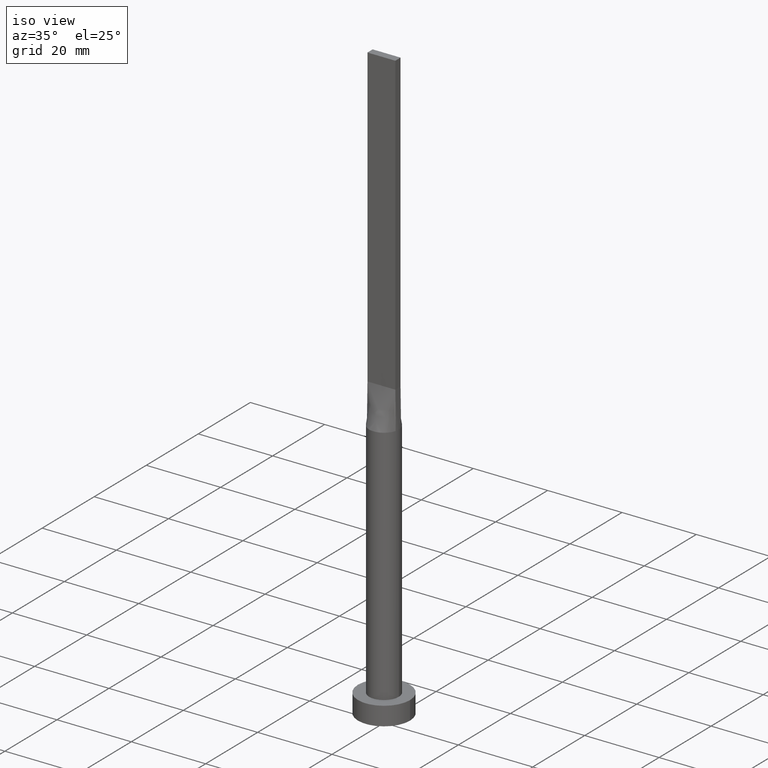
[diagram: clean part render]
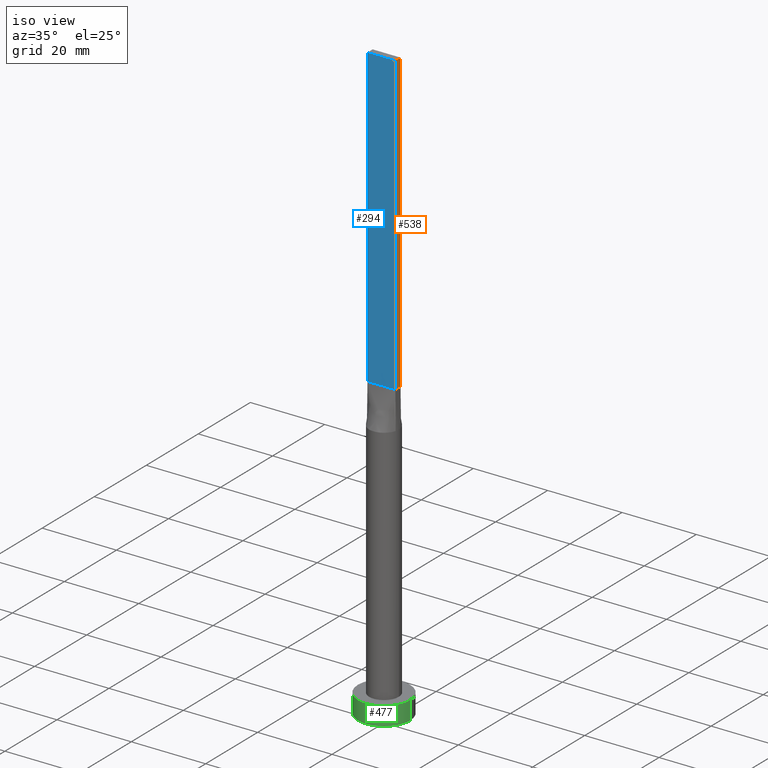
[diagram: same view with three faces highlighted in distinct colors, each labeled with its STEP entity id]
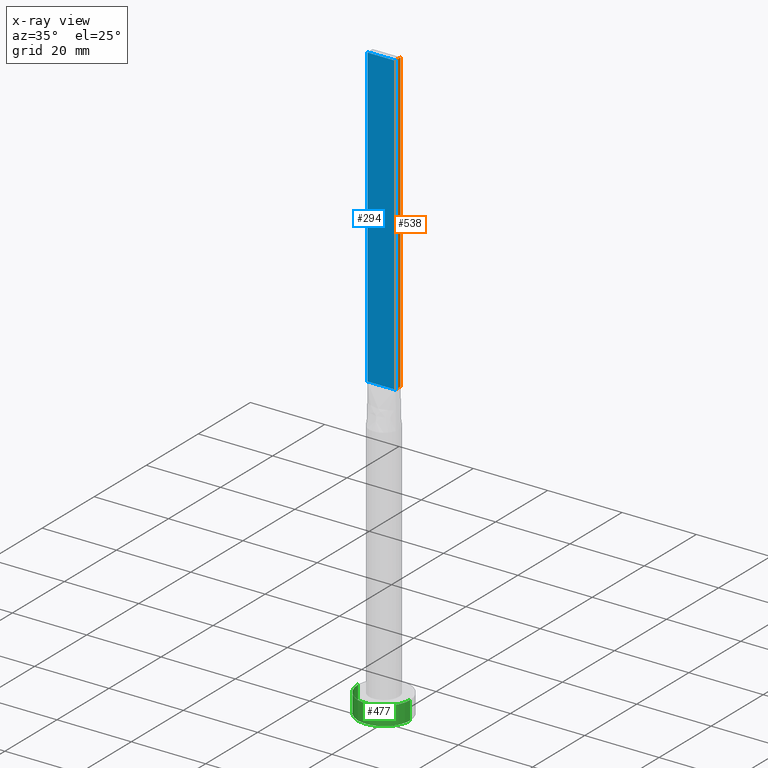
[diagram: x-ray of the same camera — body ghosted, the three highlighted faces saturated]
A machine part, iso view with three faces highlighted in distinct colors.
The next image is the same camera in x-ray (body ghosted, the three faces saturated) — at least one of them is partly hidden behind the body in this view.
Their STEP definitions:

[orange] entity #538 — the highlighted planar face has unit normal (-1, 0, 0).
#1 = CARTESIAN_POINT ( 'NONE',  ( 3.750000000000000000, -0.9999999999999997780, 160.0000000000000000 ) ) ;
#2 = VECTOR ( 'NONE', #314, 1000.000000000000000 ) ;
#7 = LINE ( 'NONE', #278, #491 ) ;
#15 = ORIENTED_EDGE ( 'NONE', *, *, #418, .T. ) ;
#25 = ORIENTED_EDGE ( 'NONE', *, *, #394, .T. ) ;
#60 = EDGE_LOOP ( 'NONE', ( #25, #419, #558, #15 ) ) ;
#81 = DIRECTION ( 'NONE',  ( -0.000000000000000000, 1.000000000000000000, -0.000000000000000000 ) ) ;
#89 = VERTEX_POINT ( 'NONE', #532 ) ;
#95 = CARTESIAN_POINT ( 'NONE',  ( 3.750000000000000000, -0.9999999999999997780, 160.0000000000000000 ) ) ;
#99 = DIRECTION ( 'NONE',  ( -1.000000000000000000, 0.000000000000000000, 0.000000000000000000 ) ) ;
#115 = VERTEX_POINT ( 'NONE', #1 ) ;
#126 = VECTOR ( 'NONE', #318, 1000.000000000000000 ) ;
#145 = FACE_OUTER_BOUND ( 'NONE', #60, .T. ) ;
#181 = CARTESIAN_POINT ( 'NONE',  ( 3.750000000000000000, 1.000000000000000000, 80.00000000000000000 ) ) ;
#197 = VERTEX_POINT ( 'NONE', #257 ) ;
#227 = CARTESIAN_POINT ( 'NONE',  ( 3.750000000000000000, -0.9999999999999997780, 160.0000000000000000 ) ) ;
#257 = CARTESIAN_POINT ( 'NONE',  ( 3.750000000000000000, 1.000000000000000000, 160.0000000000000000 ) ) ;
#260 = LINE ( 'NONE', #227, #126 ) ;
#278 = CARTESIAN_POINT ( 'NONE',  ( 3.750000000000000000, 1.000000000000000000, 160.0000000000000000 ) ) ;
#311 = LINE ( 'NONE', #571, #2 ) ;
#314 = DIRECTION ( 'NONE',  ( 0.000000000000000000, 1.000000000000000000, 0.000000000000000000 ) ) ;
#317 = EDGE_CURVE ( 'NONE', #115, #197, #311, .T. ) ;
#318 = DIRECTION ( 'NONE',  ( -0.000000000000000000, -0.000000000000000000, -1.000000000000000000 ) ) ;
#324 = CARTESIAN_POINT ( 'NONE',  ( 3.750000000000000000, -0.9999999999999997780, 80.00000000000000000 ) ) ;
#333 = PLANE ( 'NONE',  #473 ) ;
#364 = VECTOR ( 'NONE', #81, 1000.000000000000000 ) ;
#394 = EDGE_CURVE ( 'NONE', #547, #89, #486, .T. ) ;
#418 = EDGE_CURVE ( 'NONE', #115, #547, #260, .T. ) ;
#419 = ORIENTED_EDGE ( 'NONE', *, *, #577, .F. ) ;
#461 = DIRECTION ( 'NONE',  ( 0.000000000000000000, 0.000000000000000000, 1.000000000000000000 ) ) ;
#473 = AXIS2_PLACEMENT_3D ( 'NONE', #95, #99, #461 ) ;
#486 = LINE ( 'NONE', #181, #364 ) ;
#491 = VECTOR ( 'NONE', #553, 1000.000000000000000 ) ;
#532 = CARTESIAN_POINT ( 'NONE',  ( 3.750000000000000000, 1.000000000000000000, 80.00000000000000000 ) ) ;
#538 = ADVANCED_FACE ( 'NONE', ( #145 ), #333, .F. ) ;
#547 = VERTEX_POINT ( 'NONE', #324 ) ;
#553 = DIRECTION ( 'NONE',  ( -0.000000000000000000, -0.000000000000000000, -1.000000000000000000 ) ) ;
#558 = ORIENTED_EDGE ( 'NONE', *, *, #317, .F. ) ;
#571 = CARTESIAN_POINT ( 'NONE',  ( 3.750000000000000000, -0.9999999999999997780, 160.0000000000000000 ) ) ;
#577 = EDGE_CURVE ( 'NONE', #197, #89, #7, .T. ) ;

[blue] entity #294 — the highlighted planar face has unit normal (0, 1, -0).
#1 = CARTESIAN_POINT ( 'NONE',  ( 3.750000000000000000, -0.9999999999999997780, 160.0000000000000000 ) ) ;
#10 = LINE ( 'NONE', #549, #86 ) ;
#11 = ORIENTED_EDGE ( 'NONE', *, *, #418, .F. ) ;
#20 = ORIENTED_EDGE ( 'NONE', *, *, #457, .T. ) ;
#36 = CARTESIAN_POINT ( 'NONE',  ( -3.750000000000000000, -0.9999999999999991118, 160.0000000000000000 ) ) ;
#71 = EDGE_LOOP ( 'NONE', ( #20, #11, #468, #282 ) ) ;
#79 = CARTESIAN_POINT ( 'NONE',  ( -3.750000000000000000, -0.9999999999999991118, 80.00000000000000000 ) ) ;
#84 = DIRECTION ( 'NONE',  ( 1.000000000000000000, -8.673617379884035472E-17, 0.000000000000000000 ) ) ;
#86 = VECTOR ( 'NONE', #152, 1000.000000000000000 ) ;
#115 = VERTEX_POINT ( 'NONE', #1 ) ;
#126 = VECTOR ( 'NONE', #318, 1000.000000000000000 ) ;
#136 = AXIS2_PLACEMENT_3D ( 'NONE', #36, #541, #439 ) ;
#144 = VERTEX_POINT ( 'NONE', #500 ) ;
#146 = CARTESIAN_POINT ( 'NONE',  ( -3.750000000000000000, -0.9999999999999991118, 160.0000000000000000 ) ) ;
#152 = DIRECTION ( 'NONE',  ( 1.000000000000000000, -8.673617379884035472E-17, 0.000000000000000000 ) ) ;
#182 = EDGE_CURVE ( 'NONE', #144, #456, #546, .T. ) ;
#196 = VECTOR ( 'NONE', #329, 1000.000000000000000 ) ;
#227 = CARTESIAN_POINT ( 'NONE',  ( 3.750000000000000000, -0.9999999999999997780, 160.0000000000000000 ) ) ;
#260 = LINE ( 'NONE', #227, #126 ) ;
#279 = EDGE_CURVE ( 'NONE', #144, #115, #10, .T. ) ;
#280 = VECTOR ( 'NONE', #84, 1000.000000000000000 ) ;
#282 = ORIENTED_EDGE ( 'NONE', *, *, #182, .T. ) ;
#294 = ADVANCED_FACE ( 'NONE', ( #507 ), #409, .F. ) ;
#309 = CARTESIAN_POINT ( 'NONE',  ( -3.750000000000000000, -0.9999999999999991118, 80.00000000000000000 ) ) ;
#318 = DIRECTION ( 'NONE',  ( -0.000000000000000000, -0.000000000000000000, -1.000000000000000000 ) ) ;
#324 = CARTESIAN_POINT ( 'NONE',  ( 3.750000000000000000, -0.9999999999999997780, 80.00000000000000000 ) ) ;
#329 = DIRECTION ( 'NONE',  ( -0.000000000000000000, -0.000000000000000000, -1.000000000000000000 ) ) ;
#409 = PLANE ( 'NONE',  #136 ) ;
#418 = EDGE_CURVE ( 'NONE', #115, #547, #260, .T. ) ;
#439 = DIRECTION ( 'NONE',  ( -1.000000000000000000, 8.673617379884035472E-17, 0.000000000000000000 ) ) ;
#456 = VERTEX_POINT ( 'NONE', #309 ) ;
#457 = EDGE_CURVE ( 'NONE', #456, #547, #484, .T. ) ;
#468 = ORIENTED_EDGE ( 'NONE', *, *, #279, .F. ) ;
#484 = LINE ( 'NONE', #79, #280 ) ;
#500 = CARTESIAN_POINT ( 'NONE',  ( -3.750000000000000000, -0.9999999999999991118, 160.0000000000000000 ) ) ;
#507 = FACE_OUTER_BOUND ( 'NONE', #71, .T. ) ;
#541 = DIRECTION ( 'NONE',  ( 8.673617379884035472E-17, 1.000000000000000000, -0.000000000000000000 ) ) ;
#546 = LINE ( 'NONE', #146, #196 ) ;
#547 = VERTEX_POINT ( 'NONE', #324 ) ;
#549 = CARTESIAN_POINT ( 'NONE',  ( -3.750000000000000000, -0.9999999999999991118, 160.0000000000000000 ) ) ;

[green] entity #477 — the highlighted cylindrical surface (edge-blend (fillet) strip) has radius 7 mm, axis along (-0, -0, -1).
#3 = ORIENTED_EDGE ( 'NONE', *, *, #150, .T. ) ;
#41 = EDGE_CURVE ( 'NONE', #472, #430, #343, .T. ) ;
#69 = EDGE_CURVE ( 'NONE', #421, #472, #518, .T. ) ;
#82 = AXIS2_PLACEMENT_3D ( 'NONE', #524, #530, #402 ) ;
#97 = VERTEX_POINT ( 'NONE', #487 ) ;
#98 = AXIS2_PLACEMENT_3D ( 'NONE', #407, #578, #492 ) ;
#127 = DIRECTION ( 'NONE',  ( -0.000000000000000000, -0.000000000000000000, -1.000000000000000000 ) ) ;
#131 = CARTESIAN_POINT ( 'NONE',  ( 7.000000000000000000, 8.572527594031473190E-16, 0.000000000000000000 ) ) ;
#133 = FACE_OUTER_BOUND ( 'NONE', #362, .T. ) ;
#150 = EDGE_CURVE ( 'NONE', #97, #430, #555, .T. ) ;
#215 = LINE ( 'NONE', #437, #291 ) ;
#229 = ORIENTED_EDGE ( 'NONE', *, *, #41, .F. ) ;
#266 = CARTESIAN_POINT ( 'NONE',  ( 7.000000000000000000, 8.572527594031473190E-16, 5.000000000000000000 ) ) ;
#281 = DIRECTION ( 'NONE',  ( 0.000000000000000000, 0.000000000000000000, 1.000000000000000000 ) ) ;
#287 = AXIS2_PLACEMENT_3D ( 'NONE', #497, #281, #417 ) ;
#291 = VECTOR ( 'NONE', #442, 1000.000000000000000 ) ;
#323 = ORIENTED_EDGE ( 'NONE', *, *, #347, .T. ) ;
#343 = LINE ( 'NONE', #478, #498 ) ;
#347 = EDGE_CURVE ( 'NONE', #421, #97, #215, .T. ) ;
#362 = EDGE_LOOP ( 'NONE', ( #229, #556, #323, #3 ) ) ;
#398 = CARTESIAN_POINT ( 'NONE',  ( -7.000000000000000000, 0.000000000000000000, 5.000000000000000000 ) ) ;
#402 = DIRECTION ( 'NONE',  ( 1.000000000000000000, 0.000000000000000000, 0.000000000000000000 ) ) ;
#407 = CARTESIAN_POINT ( 'NONE',  ( 0.000000000000000000, 0.000000000000000000, 5.000000000000000000 ) ) ;
#417 = DIRECTION ( 'NONE',  ( 1.000000000000000000, 0.000000000000000000, 0.000000000000000000 ) ) ;
#421 = VERTEX_POINT ( 'NONE', #398 ) ;
#430 = VERTEX_POINT ( 'NONE', #131 ) ;
#437 = CARTESIAN_POINT ( 'NONE',  ( -7.000000000000000000, 0.000000000000000000, 5.000000000000000000 ) ) ;
#442 = DIRECTION ( 'NONE',  ( -0.000000000000000000, -0.000000000000000000, -1.000000000000000000 ) ) ;
#472 = VERTEX_POINT ( 'NONE', #266 ) ;
#477 = ADVANCED_FACE ( 'NONE', ( #133 ), #531, .T. ) ;
#478 = CARTESIAN_POINT ( 'NONE',  ( 7.000000000000000000, 8.572527594031473190E-16, 5.000000000000000000 ) ) ;
#487 = CARTESIAN_POINT ( 'NONE',  ( -7.000000000000000000, 0.000000000000000000, 0.000000000000000000 ) ) ;
#492 = DIRECTION ( 'NONE',  ( -1.000000000000000000, 0.000000000000000000, 0.000000000000000000 ) ) ;
#497 = CARTESIAN_POINT ( 'NONE',  ( 0.000000000000000000, 0.000000000000000000, 0.000000000000000000 ) ) ;
#498 = VECTOR ( 'NONE', #127, 1000.000000000000000 ) ;
#518 = CIRCLE ( 'NONE', #82, 7.000000000000000000 ) ;
#524 = CARTESIAN_POINT ( 'NONE',  ( 0.000000000000000000, 0.000000000000000000, 5.000000000000000000 ) ) ;
#530 = DIRECTION ( 'NONE',  ( 0.000000000000000000, 0.000000000000000000, 1.000000000000000000 ) ) ;
#531 = CYLINDRICAL_SURFACE ( 'NONE', #98, 7.000000000000000000 ) ;
#555 = CIRCLE ( 'NONE', #287, 7.000000000000000000 ) ;
#556 = ORIENTED_EDGE ( 'NONE', *, *, #69, .F. ) ;
#578 = DIRECTION ( 'NONE',  ( -0.000000000000000000, -0.000000000000000000, -1.000000000000000000 ) ) ;